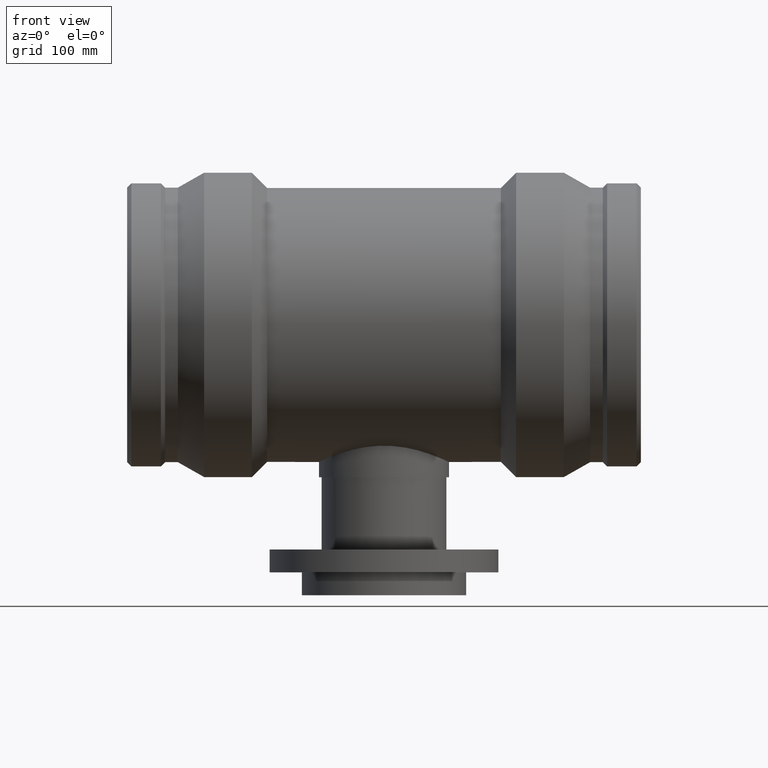
[diagram: clean part render]
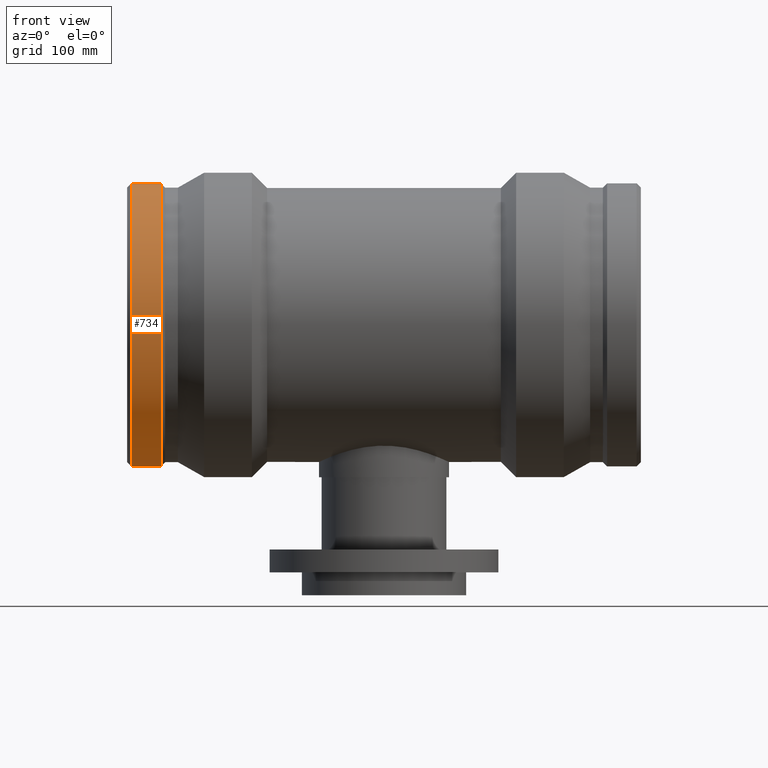
[diagram: same view with one face highlighted and labeled with its STEP entity id]
A machine part, front view. The second image highlights one B-rep face of the part: STEP entity #734.
In plain terms, the highlighted cylindrical surface (bore or boss wall) has radius 136.245 mm, axis along (1, 0, 0).
Its self-contained STEP definition (entity closure, byte-faithful):
#93=FACE_BOUND('',#360,.T.);
#94=FACE_BOUND('',#361,.T.);
#161=CIRCLE('',#835,136.245);
#162=CIRCLE('',#837,136.245);
#204=CYLINDRICAL_SURFACE('',#836,136.245);
#250=FACE_OUTER_BOUND('',#359,.T.);
#359=EDGE_LOOP('',(#645));
#360=EDGE_LOOP('',(#646));
#361=EDGE_LOOP('',(#647));
#418=B_SPLINE_CURVE_WITH_KNOTS('',3,(#1615,#1616,#1617,#1618,#1619,#1620,
#1621,#1622,#1623,#1624,#1625,#1626,#1627,#1628,#1629,#1630,#1631,#1632,
#1633,#1634,#1635,#1636,#1637,#1638,#1639,#1640,#1641,#1642,#1643,#1644,
#1645,#1646,#1647,#1648),.UNSPECIFIED.,.T.,.F.,(4,2,2,2,2,2,2,2,2,2,2,2,
2,2,2,2,4),(0.,0.295418226269243,0.590836452538485,0.886084254183828,1.18133205582917,
1.47657985747451,1.77182765911986,2.0672458853891,2.36266411165834,2.65808233792758,
2.95350056419683,3.24874836584217,3.54399616748751,3.83924396913285,4.1344917707782,
4.42990999704744,4.72532822331668),.UNSPECIFIED.);
#461=VERTEX_POINT('',#1614);
#464=VERTEX_POINT('',#1655);
#465=VERTEX_POINT('',#1658);
#531=EDGE_CURVE('',#461,#461,#418,.T.);
#534=EDGE_CURVE('',#464,#464,#161,.T.);
#535=EDGE_CURVE('',#465,#465,#162,.T.);
#645=ORIENTED_EDGE('',*,*,#534,.T.);
#646=ORIENTED_EDGE('',*,*,#531,.T.);
#647=ORIENTED_EDGE('',*,*,#535,.F.);
#734=ADVANCED_FACE('',(#250,#93,#94),#204,.T.);
#835=AXIS2_PLACEMENT_3D('',#1656,#1035,#1036);
#836=AXIS2_PLACEMENT_3D('',#1657,#1037,#1038);
#837=AXIS2_PLACEMENT_3D('',#1659,#1039,#1040);
#1035=DIRECTION('center_axis',(1.,0.,0.));
#1036=DIRECTION('ref_axis',(0.,0.,-1.));
#1037=DIRECTION('center_axis',(1.,0.,0.));
#1038=DIRECTION('ref_axis',(0.,1.,0.));
#1039=DIRECTION('center_axis',(1.,0.,0.));
#1040=DIRECTION('ref_axis',(0.,0.,-1.));
#1614=CARTESIAN_POINT('',(-228.7,136.018763437319,-7.84831306604953));
#1615=CARTESIAN_POINT('Ctrl Pts',(-228.7,136.018763437319,-7.84831306604953));
#1616=CARTESIAN_POINT('Ctrl Pts',(-227.715272579103,136.018763437319,-7.84831306604953));
#1617=CARTESIAN_POINT('Ctrl Pts',(-226.665349950551,136.030618213748,-7.65065417035328));
#1618=CARTESIAN_POINT('Ctrl Pts',(-224.735110141589,136.073393290947,-6.8478637902068));
#1619=CARTESIAN_POINT('Ctrl Pts',(-223.85476802947,136.103692805341,-6.24275929495639));
#1620=CARTESIAN_POINT('Ctrl Pts',(-222.465961444976,136.160495821654,-4.8483042900221));
#1621=CARTESIAN_POINT('Ctrl Pts',(-221.864641292848,136.190688258126,-3.96612272875408));
#1622=CARTESIAN_POINT('Ctrl Pts',(-221.067401511418,136.233242315434,-2.03405650624902));
#1623=CARTESIAN_POINT('Ctrl Pts',(-220.87148006846,136.245,-0.984159338817808));
#1624=CARTESIAN_POINT('Ctrl Pts',(-220.87148006846,136.245,0.984159338817808));
#1625=CARTESIAN_POINT('Ctrl Pts',(-221.067401511418,136.233242315434,2.03405650624902));
#1626=CARTESIAN_POINT('Ctrl Pts',(-221.864641292848,136.190688258126,3.96612272875409));
#1627=CARTESIAN_POINT('Ctrl Pts',(-222.465961444976,136.160495821654,4.8483042900221));
#1628=CARTESIAN_POINT('Ctrl Pts',(-223.85476802947,136.103692805341,6.24275929495639));
#1629=CARTESIAN_POINT('Ctrl Pts',(-224.735110141589,136.073393290947,6.8478637902068));
#1630=CARTESIAN_POINT('Ctrl Pts',(-226.665349950551,136.030618213748,7.65065417035328));
#1631=CARTESIAN_POINT('Ctrl Pts',(-227.715272579103,136.018763437319,7.84831306604953));
#1632=CARTESIAN_POINT('Ctrl Pts',(-229.684727420898,136.018763437319,7.84831306604953));
#1633=CARTESIAN_POINT('Ctrl Pts',(-230.734650049449,136.030618213748,7.65065417035328));
#1634=CARTESIAN_POINT('Ctrl Pts',(-232.664889858412,136.073393290947,6.8478637902068));
#1635=CARTESIAN_POINT('Ctrl Pts',(-233.54523197053,136.103692805341,6.24275929495639));
#1636=CARTESIAN_POINT('Ctrl Pts',(-234.934038555024,136.160495821654,4.8483042900221));
#1637=CARTESIAN_POINT('Ctrl Pts',(-235.535358707153,136.190688258126,3.96612272875408));
#1638=CARTESIAN_POINT('Ctrl Pts',(-236.332598488582,136.233242315434,2.03405650624901));
#1639=CARTESIAN_POINT('Ctrl Pts',(-236.52851993154,136.245,0.98415933881781));
#1640=CARTESIAN_POINT('Ctrl Pts',(-236.52851993154,136.245,-0.984159338817807));
#1641=CARTESIAN_POINT('Ctrl Pts',(-236.332598488582,136.233242315434,-2.03405650624902));
#1642=CARTESIAN_POINT('Ctrl Pts',(-235.535358707153,136.190688258126,-3.96612272875408));
#1643=CARTESIAN_POINT('Ctrl Pts',(-234.934038555024,136.160495821654,-4.8483042900221));
#1644=CARTESIAN_POINT('Ctrl Pts',(-233.54523197053,136.103692805341,-6.24275929495639));
#1645=CARTESIAN_POINT('Ctrl Pts',(-232.664889858412,136.073393290947,-6.8478637902068));
#1646=CARTESIAN_POINT('Ctrl Pts',(-230.734650049449,136.030618213748,-7.65065417035328));
#1647=CARTESIAN_POINT('Ctrl Pts',(-229.684727420898,136.018763437319,-7.84831306604953));
#1648=CARTESIAN_POINT('Ctrl Pts',(-228.7,136.018763437319,-7.84831306604953));
#1655=CARTESIAN_POINT('',(-242.91265,136.245,0.));
#1656=CARTESIAN_POINT('Origin',(-242.91265,0.,0.));
#1657=CARTESIAN_POINT('Origin',(-228.7,0.,0.));
#1658=CARTESIAN_POINT('',(-214.48735,136.245,0.));
#1659=CARTESIAN_POINT('Origin',(-214.48735,0.,0.));